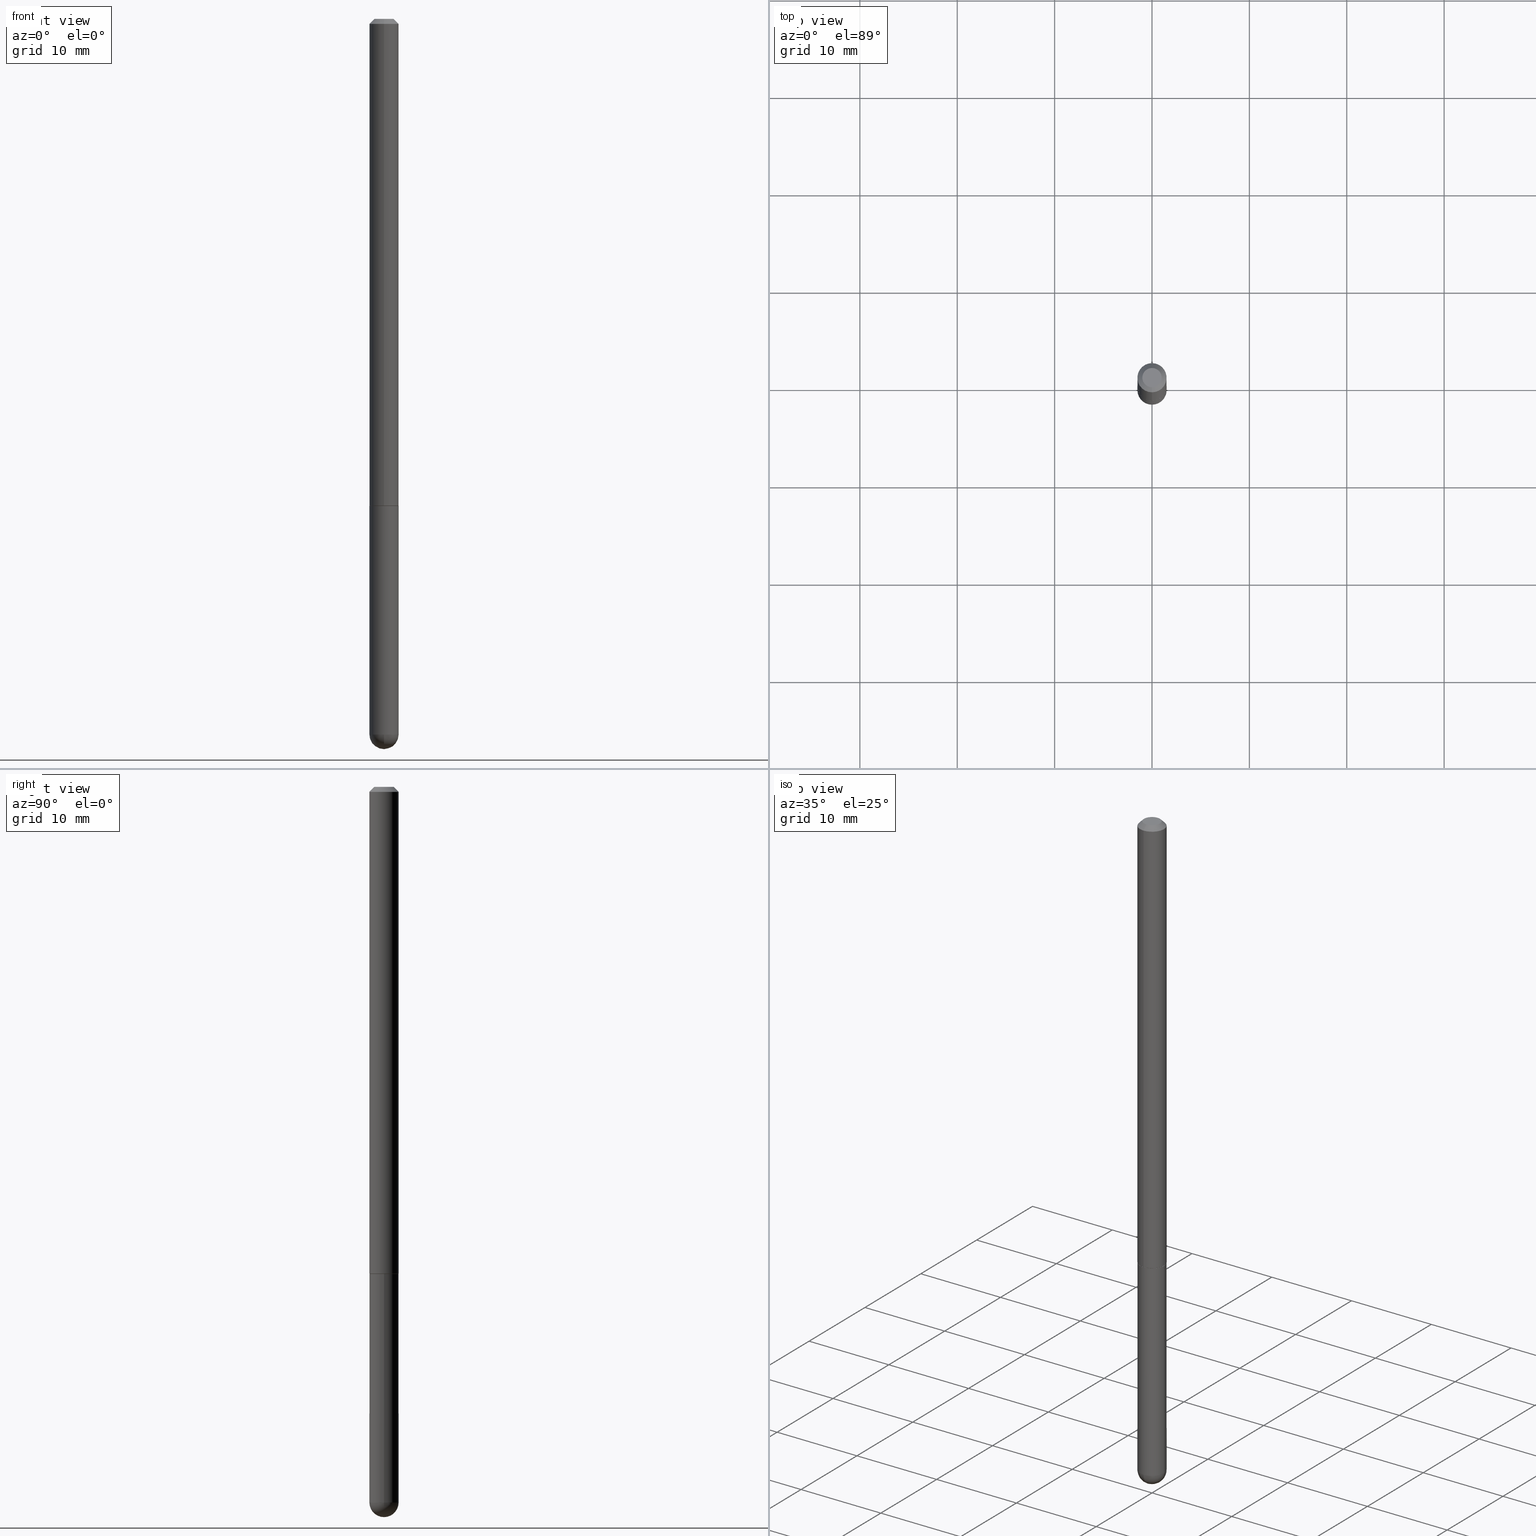
[diagram: canonical four-view strip — front | top / right | iso, engineering-drawing reading convention]
A machine part, canonical four-view strip (front | top / right | iso — engineering-drawing reading convention). The complete STEP part file that produces these views, byte-faithful:
ISO-10303-21;
HEADER;
FILE_DESCRIPTION (( 'STEP AP203' ),
    '1' );
FILE_NAME ('49570.STEP',
    '2024-04-10T12:28:42',
    ( '' ),
    ( '' ),
    'SwSTEP 2.0',
    'SolidWorks 2023',
    '' );
FILE_SCHEMA (( 'CONFIG_CONTROL_DESIGN' ));
ENDSEC;

DATA;
#1 = DIRECTION ( 'NONE',  ( -2.449347094920523449E-29, 3.485927408635585290E-15, 1.000000000000000000 ) ) ;
#2 = CALENDAR_DATE ( 2024, 10, 4 ) ;
#3 = CIRCLE ( 'NONE', #193, 0.05805000000000000437 ) ;
#4 = FACE_OUTER_BOUND ( 'NONE', #210, .T. ) ;
#5 = DATE_AND_TIME ( #88, #20 ) ;
#6 = CONICAL_SURFACE ( 'NONE', #57, 0.05905000000000001914, 0.7853981633974476129 ) ;
#7 = DATE_AND_TIME ( #2, #166 ) ;
#8 = VERTEX_POINT ( 'NONE', #44 ) ;
#9 = EDGE_LOOP ( 'NONE', ( #18, #111, #135, #350 ) ) ;
#10 = FACE_OUTER_BOUND ( 'NONE', #340, .T. ) ;
#11 = VERTEX_POINT ( 'NONE', #263 ) ;
#12 = DIRECTION ( 'NONE',  ( -6.982962677686265922E-15, -1.000000000000000000, 3.485927408635585290E-15 ) ) ;
#13 = ORIENTED_EDGE ( 'NONE', *, *, #170, .T. ) ;
#14 = ORIENTED_EDGE ( 'NONE', *, *, #147, .F. ) ;
#15 = DIRECTION ( 'NONE',  ( 4.937700262164543309E-15, 0.7071067811865444641, -0.7071067811865503483 ) ) ;
#16 = ORIENTED_EDGE ( 'NONE', *, *, #87, .T. ) ;
#17 = CARTESIAN_POINT ( 'NONE',  ( -0.05905000000000001914, -8.068652084428701697E-15, -2.893749999999999822 ) ) ;
#18 = ORIENTED_EDGE ( 'NONE', *, *, #87, .F. ) ;
#19 = EDGE_CURVE ( 'NONE', #71, #363, #3, .T. ) ;
#20 = LOCAL_TIME ( 8, 28, 42.00000000000000000, #31 ) ;
#21 = DIRECTION ( 'NONE',  ( -2.445468806185136597E-29, 3.491481338843145583E-15, 1.000000000000000000 ) ) ;
#22 = AXIS2_PLACEMENT_3D ( 'NONE', #84, #59, #80 ) ;
#23 = CARTESIAN_POINT ( 'NONE',  ( 0.000000000000000000, 0.000000000000000000, 0.000000000000000000 ) ) ;
#24 = AXIS2_PLACEMENT_3D ( 'NONE', #184, #271, #409 ) ;
#25 = ADVANCED_FACE ( 'NONE', ( #259 ), #55, .T. ) ;
#26 = PRODUCT_DEFINITION_FORMATION_WITH_SPECIFIED_SOURCE ( 'ANY', '', #125, .NOT_KNOWN. ) ;
#27 = ADVANCED_FACE ( 'NONE', ( #357 ), #395, .T. ) ;
#28 = EDGE_CURVE ( 'NONE', #331, #332, #380, .T. ) ;
#29 = AXIS2_PLACEMENT_3D ( 'NONE', #134, #330, #231 ) ;
#30 = PERSON_AND_ORGANIZATION_ROLE ( 'design_supplier' ) ;
#31 = COORDINATED_UNIVERSAL_TIME_OFFSET ( 5, 0, .BEHIND. ) ;
#32 = SHAPE_DEFINITION_REPRESENTATION ( #278, #152 ) ;
#33 = VECTOR ( 'NONE', #48, 39.37007874015748854 ) ;
#34 = CARTESIAN_POINT ( 'NONE',  ( 4.898694189841063994E-31, -6.971854817271193900E-17, -0.02000000000000006981 ) ) ;
#35 = PERSON_AND_ORGANIZATION_ROLE ( 'creator' ) ;
#36 = APPLICATION_CONTEXT ( 'configuration controlled 3d designs of mechanical parts and assemblies' ) ;
#37 = ADVANCED_FACE ( 'NONE', ( #179 ), #118, .T. ) ;
#38 = VERTEX_POINT ( 'NONE', #173 ) ;
#39 = EDGE_CURVE ( 'NONE', #394, #162, #334, .T. ) ;
#40 = VECTOR ( 'NONE', #243, 39.37007874015748854 ) ;
#41 = EDGE_LOOP ( 'NONE', ( #202, #69, #195, #157 ) ) ;
#42 = DIRECTION ( 'NONE',  ( 1.000000000000000000, -6.982962677686270655E-15, 0.000000000000000000 ) ) ;
#43 = ORIENTED_EDGE ( 'NONE', *, *, #68, .T. ) ;
#44 = CARTESIAN_POINT ( 'NONE',  ( -0.05905000000000001914, -8.068652084428701697E-15, -1.968499999999999694 ) ) ;
#45 = DIRECTION ( 'NONE',  ( -2.449347094920523169E-29, 3.485927408635585290E-15, 1.000000000000000000 ) ) ;
#46 = AXIS2_PLACEMENT_3D ( 'NONE', #174, #379, #149 ) ;
#47 = ORIENTED_EDGE ( 'NONE', *, *, #190, .T. ) ;
#48 = DIRECTION ( 'NONE',  ( -4.851104656540959542E-15, -0.7071067811865493491, -0.7071067811865454633 ) ) ;
#49 = ORIENTED_EDGE ( 'NONE', *, *, #376, .T. ) ;
#50 = EDGE_CURVE ( 'NONE', #230, #293, #77, .T. ) ;
#51 = DIRECTION ( 'NONE',  ( -2.445468806185136597E-29, 3.491481338843145583E-15, 1.000000000000000000 ) ) ;
#52 = ORIENTED_EDGE ( 'NONE', *, *, #39, .F. ) ;
#53 = DIRECTION ( 'NONE',  ( -2.445468806185136877E-29, 3.491481338843145188E-15, 1.000000000000000000 ) ) ;
#54 = DIRECTION ( 'NONE',  ( 2.438088387897960049E-29, -3.491481338843145188E-15, -1.000000000000000000 ) ) ;
#55 = CONICAL_SURFACE ( 'NONE', #355, 0.05805000000000000437, 0.7853981633976532262 ) ;
#56 = DIRECTION ( 'NONE',  ( 1.000000000000000000, -6.982962677686270655E-15, 0.000000000000000000 ) ) ;
#57 = AXIS2_PLACEMENT_3D ( 'NONE', #388, #95, #224 ) ;
#58 = ADVANCED_FACE ( 'NONE', ( #298 ), #335, .T. ) ;
#59 = DIRECTION ( 'NONE',  ( -2.445468806185136597E-29, 3.491481338843145583E-15, 1.000000000000000000 ) ) ;
#60 = APPROVAL_DATE_TIME ( #318, #397 ) ;
#61 = PERSON_AND_ORGANIZATION_ROLE ( 'classification_officer' ) ;
#62 = PERSON_AND_ORGANIZATION ( #100, #406 ) ;
#63 = AXIS2_PLACEMENT_3D ( 'NONE', #115, #269, #402 ) ;
#64 = EDGE_LOOP ( 'NONE', ( #75, #203, #268, #238 ) ) ;
#65 = EDGE_LOOP ( 'NONE', ( #400, #167 ) ) ;
#66 = VECTOR ( 'NONE', #15, 39.37007874015748854 ) ;
#67 = AXIS2_PLACEMENT_3D ( 'NONE', #310, #182, #274 ) ;
#68 = EDGE_CURVE ( 'NONE', #38, #138, #124, .T. ) ;
#69 = ORIENTED_EDGE ( 'NONE', *, *, #19, .T. ) ;
#70 = DIRECTION ( 'NONE',  ( -7.105427357601001070E-15, -1.000000000000000000, 0.000000000000000000 ) ) ;
#71 = VERTEX_POINT ( 'NONE', #374 ) ;
#72 = ORIENTED_EDGE ( 'NONE', *, *, #337, .T. ) ;
#73 = DIRECTION ( 'NONE',  ( -2.449347094920523449E-29, 3.485927408635585290E-15, 1.000000000000000000 ) ) ;
#74 = LINE ( 'NONE', #82, #40 ) ;
#75 = ORIENTED_EDGE ( 'NONE', *, *, #50, .F. ) ;
#76 = ORIENTED_EDGE ( 'NONE', *, *, #343, .T. ) ;
#77 = LINE ( 'NONE', #270, #323 ) ;
#78 = CIRCLE ( 'NONE', #186, 0.05905000000000021343 ) ;
#79 = CARTESIAN_POINT ( 'NONE',  ( -5.535874225796559963E-45, 7.878693768834629010E-31, 2.260142810007165684E-16 ) ) ;
#80 = DIRECTION ( 'NONE',  ( 1.000000000000000000, -6.982962677686270655E-15, 0.000000000000000000 ) ) ;
#81 = CARTESIAN_POINT ( 'NONE',  ( 7.076575357898237682E-29, -1.010347412427735067E-14, -2.893749999999999822 ) ) ;
#82 = CARTESIAN_POINT ( 'NONE',  ( 4.124700581087863588E-16, 0.05804999999999314181, -1.968499999999999694 ) ) ;
#83 = CARTESIAN_POINT ( 'NONE',  ( 4.123439461173745750E-16, 0.05904999999999994975, -0.02000000000000027450 ) ) ;
#84 = CARTESIAN_POINT ( 'NONE',  ( 7.076575357898237682E-29, -1.010347412427735067E-14, -2.893749999999999822 ) ) ;
#85 = DIRECTION ( 'NONE',  ( -2.445468806185136877E-29, 3.491481338843145188E-15, 1.000000000000000000 ) ) ;
#86 = DIRECTION ( 'NONE',  ( -2.445468806185136597E-29, 3.491481338843145583E-15, 1.000000000000000000 ) ) ;
#87 = EDGE_CURVE ( 'NONE', #394, #361, #226, .T. ) ;
#88 = CALENDAR_DATE ( 2024, 10, 4 ) ;
#89 = DIRECTION ( 'NONE',  ( -2.449347094920523449E-29, 3.485927408635585290E-15, 1.000000000000000000 ) ) ;
#90 = APPROVAL_ROLE ( '' ) ;
#91 = APPLICATION_CONTEXT ( 'configuration controlled 3d designs of mechanical parts and assemblies' ) ;
#92 = APPROVAL ( #349, 'UNSPECIFIED' ) ;
#93 = AXIS2_PLACEMENT_3D ( 'NONE', #237, #21, #56 ) ;
#94 = COORDINATED_UNIVERSAL_TIME_OFFSET ( 5, 0, .BEHIND. ) ;
#95 = DIRECTION ( 'NONE',  ( 2.449347094920523449E-29, -3.485927408635585290E-15, -1.000000000000000000 ) ) ;
#96 = APPROVAL_STATUS ( 'not_yet_approved' ) ;
#97 = AXIS2_PLACEMENT_3D ( 'NONE', #241, #51, #121 ) ;
#98 = EDGE_CURVE ( 'NONE', #138, #11, #168, .T. ) ;
#99 = VECTOR ( 'NONE', #160, 39.37007874015748854 ) ;
#100 = PERSON ( 'UNSPECIFIED', 'UNSPECIFIED', 'UNSPECIFIED', ('UNSPECIFIED'), ('UNSPECIFIED'), ('UNSPECIFIED') ) ;
#101 = EDGE_LOOP ( 'NONE', ( #198, #47, #43, #161, #325 ) ) ;
#102 = CARTESIAN_POINT ( 'NONE',  ( 0.05905000000000001914, -8.900571516012416899E-15, -2.893749999999999822 ) ) ;
#103 = DIRECTION ( 'NONE',  ( -2.449347094920523449E-29, 3.485927408635585290E-15, 1.000000000000000000 ) ) ;
#104 = EDGE_LOOP ( 'NONE', ( #14, #13, #297, #130 ) ) ;
#105 = ORIENTED_EDGE ( 'NONE', *, *, #190, .F. ) ;
#106 = CARTESIAN_POINT ( 'NONE',  ( -4.053609834396395528E-16, -0.05805000000000686694, -1.968499999999999250 ) ) ;
#107 = VERTEX_POINT ( 'NONE', #236 ) ;
#108 = DIRECTION ( 'NONE',  ( -6.982962677686265922E-15, -1.000000000000000000, 3.469747663417776213E-15 ) ) ;
#109 = ORIENTED_EDGE ( 'NONE', *, *, #50, .T. ) ;
#110 = EDGE_CURVE ( 'NONE', #293, #162, #296, .T. ) ;
#111 = ORIENTED_EDGE ( 'NONE', *, *, #39, .T. ) ;
#112 = CARTESIAN_POINT ( 'NONE',  ( 0.05905000000000001914, -4.123439461173741806E-16, 2.879382386107500921E-30 ) ) ;
#113 = DIRECTION ( 'NONE',  ( -6.982962677686265922E-15, -1.000000000000000000, 3.469747663417776213E-15 ) ) ;
#114 = ADVANCED_FACE ( 'NONE', ( #234 ), #366, .F. ) ;
#115 = CARTESIAN_POINT ( 'NONE',  ( 7.076575357898237682E-29, -1.010347412427735067E-14, -2.893749999999999822 ) ) ;
#116 = LINE ( 'NONE', #308, #314 ) ;
#117 = DIRECTION ( 'NONE',  ( -2.449347094920523449E-29, 3.485927408635585290E-15, 1.000000000000000000 ) ) ;
#118 = CYLINDRICAL_SURFACE ( 'NONE', #67, 0.05905000000000001914 ) ;
#119 = EDGE_CURVE ( 'NONE', #11, #8, #122, .T. ) ;
#120 = APPROVAL_PERSON_ORGANIZATION ( #188, #92, #90 ) ;
#121 = DIRECTION ( 'NONE',  ( 1.000000000000000000, -6.982962677686266711E-15, 4.876176775795935793E-29 ) ) ;
#122 = CIRCLE ( 'NONE', #131, 0.05905000000000001914 ) ;
#123 = MECHANICAL_CONTEXT ( 'NONE', #36, 'mechanical' ) ;
#124 = CIRCLE ( 'NONE', #63, 0.05905000000000001914 ) ;
#125 = PRODUCT ( '49570', '49570', '', ( #123 ) ) ;
#126 = CONICAL_SURFACE ( 'NONE', #319, 0.05905000000000001914, 0.7853981633974476129 ) ;
#127 = APPROVAL_DATE_TIME ( #354, #92 ) ;
#128 = EDGE_CURVE ( 'NONE', #363, #107, #396, .T. ) ;
#129 = CC_DESIGN_APPROVAL ( #397, ( #371 ) ) ;
#130 = ORIENTED_EDGE ( 'NONE', *, *, #68, .F. ) ;
#131 = AXIS2_PLACEMENT_3D ( 'NONE', #260, #165, #393 ) ;
#132 = PRODUCT_RELATED_PRODUCT_CATEGORY ( 'detail', '', ( #125 ) ) ;
#133 = ORIENTED_EDGE ( 'NONE', *, *, #172, .T. ) ;
#134 = CARTESIAN_POINT ( 'NONE',  ( 2.726846925636469433E-16, 0.03904999999999975158, -2.311832480686045111E-17 ) ) ;
#135 = ORIENTED_EDGE ( 'NONE', *, *, #364, .T. ) ;
#136 = ORIENTED_EDGE ( 'NONE', *, *, #288, .T. ) ;
#137 = CARTESIAN_POINT ( 'NONE',  ( 6.745455579984352556E-29, -1.057765649241740097E-14, -2.893749999999999822 ) ) ;
#138 = VERTEX_POINT ( 'NONE', #102 ) ;
#139 =( CONVERSION_BASED_UNIT ( 'INCH', #299 ) LENGTH_UNIT ( ) NAMED_UNIT ( #215 ) );
#140 = EDGE_LOOP ( 'NONE', ( #302, #232 ) ) ;
#141 = ADVANCED_FACE ( 'NONE', ( #10 ), #228, .F. ) ;
#142 = DIRECTION ( 'NONE',  ( 6.982962677686266711E-15, 1.000000000000000000, 0.000000000000000000 ) ) ;
#143 =( GEOMETRIC_REPRESENTATION_CONTEXT ( 3 ) GLOBAL_UNCERTAINTY_ASSIGNED_CONTEXT ( ( #356 ) ) GLOBAL_UNIT_ASSIGNED_CONTEXT ( ( #139, #403, #339 ) ) REPRESENTATION_CONTEXT ( 'NONE', 'WORKASPACE' ) );
#144 = CARTESIAN_POINT ( 'NONE',  ( 4.821539756351048818E-29, -6.862048103899147658E-15, -1.968499999999999472 ) ) ;
#145 = AXIS2_PLACEMENT_3D ( 'NONE', #144, #348, #378 ) ;
#146 = CARTESIAN_POINT ( 'NONE',  ( 6.745455579984352556E-29, -1.057765649241740097E-14, -2.893749999999999822 ) ) ;
#147 = EDGE_CURVE ( 'NONE', #249, #38, #373, .T. ) ;
#148 = DIRECTION ( 'NONE',  ( -6.982962677686265922E-15, -1.000000000000000000, 3.485927408635585684E-15 ) ) ;
#149 = DIRECTION ( 'NONE',  ( 6.982962677686265922E-15, 1.000000000000000000, 0.000000000000000000 ) ) ;
#150 = AXIS2_PLACEMENT_3D ( 'NONE', #404, #73, #336 ) ;
#151 = DIRECTION ( 'NONE',  ( -1.000000000000000000, 6.982962677686265922E-15, -4.876176775795935793E-29 ) ) ;
#152 = ADVANCED_BREP_SHAPE_REPRESENTATION ( '49570', ( #311, #163, #206 ), #143 ) ;
#153 = ORIENTED_EDGE ( 'NONE', *, *, #128, .F. ) ;
#154 = DATE_TIME_ROLE ( 'creation_date' ) ;
#155 = DIRECTION ( 'NONE',  ( 2.449347094920523449E-29, -3.485927408635585290E-15, -1.000000000000000000 ) ) ;
#156 = CALENDAR_DATE ( 2024, 10, 4 ) ;
#157 = ORIENTED_EDGE ( 'NONE', *, *, #218, .F. ) ;
#158 = CC_DESIGN_PERSON_AND_ORGANIZATION_ASSIGNMENT ( #352, #253, ( #125 ) ) ;
#159 = EDGE_LOOP ( 'NONE', ( #133, #109, #326, #290 ) ) ;
#160 = DIRECTION ( 'NONE',  ( -4.937700262165559362E-15, -0.7071067811866899033, 0.7071067811864050201 ) ) ;
#161 = ORIENTED_EDGE ( 'NONE', *, *, #98, .T. ) ;
#162 = VERTEX_POINT ( 'NONE', #201 ) ;
#163 = MANIFOLD_SOLID_BREP ( 'Body-Move/Copy2[2]', #266 ) ;
#164 = CARTESIAN_POINT ( 'NONE',  ( 4.821539756351048818E-29, -6.862048103899147658E-15, -1.968499999999999472 ) ) ;
#165 = DIRECTION ( 'NONE',  ( -2.445468806185136597E-29, 3.491481338843145583E-15, 1.000000000000000000 ) ) ;
#166 = LOCAL_TIME ( 8, 28, 42.00000000000000000, #94 ) ;
#167 = ORIENTED_EDGE ( 'NONE', *, *, #19, .F. ) ;
#168 = LINE ( 'NONE', #112, #251 ) ;
#169 = CLOSED_SHELL ( 'NONE', ( #264, #277, #372, #222, #37 ) ) ;
#170 = EDGE_CURVE ( 'NONE', #249, #331, #257, .T. ) ;
#171 =( LENGTH_UNIT ( ) NAMED_UNIT ( * ) SI_UNIT ( $, .METRE. ) );
#172 = EDGE_CURVE ( 'NONE', #107, #230, #78, .T. ) ;
#173 = CARTESIAN_POINT ( 'NONE',  ( -4.195754854662709114E-16, -0.05905000000001047605, -2.893749999999999822 ) ) ;
#174 = CARTESIAN_POINT ( 'NONE',  ( 6.745455579984352556E-29, -1.057765649241740097E-14, -2.893749999999999822 ) ) ;
#175 = CIRCLE ( 'NONE', #282, 0.05905000000000001914 ) ;
#176 = CIRCLE ( 'NONE', #295, 0.03904999999999975158 ) ;
#177 = AXIS2_PLACEMENT_3D ( 'NONE', #137, #199, #142 ) ;
#178 = APPLICATION_PROTOCOL_DEFINITION ( 'international standard', 'config_control_design', 1994, #36 ) ;
#179 = FACE_OUTER_BOUND ( 'NONE', #101, .T. ) ;
#180 = CARTESIAN_POINT ( 'NONE',  ( 4.898694189841063994E-31, -6.971854817271193900E-17, -0.02000000000000006981 ) ) ;
#181 = CC_DESIGN_PERSON_AND_ORGANIZATION_ASSIGNMENT ( #281, #35, ( #316 ) ) ;
#182 = DIRECTION ( 'NONE',  ( -2.445468806185136597E-29, 3.491481338843145583E-15, 1.000000000000000000 ) ) ;
#183 = APPROVAL_DATE_TIME ( #7, #333 ) ;
#184 = CARTESIAN_POINT ( 'NONE',  ( 4.819090409256129249E-29, -6.858562176490512022E-15, -1.967499999999999805 ) ) ;
#185 = ADVANCED_FACE ( 'NONE', ( #246 ), #342, .T. ) ;
#186 = AXIS2_PLACEMENT_3D ( 'NONE', #279, #117, #306 ) ;
#187 = SECURITY_CLASSIFICATION_LEVEL ( 'unclassified' ) ;
#188 = PERSON_AND_ORGANIZATION ( #100, #406 ) ;
#189 = EDGE_CURVE ( 'NONE', #363, #71, #328, .T. ) ;
#190 = EDGE_CURVE ( 'NONE', #332, #38, #197, .T. ) ;
#191 = LOCAL_TIME ( 8, 28, 42.00000000000000000, #313 ) ;
#192 = APPROVAL_ROLE ( '' ) ;
#193 = AXIS2_PLACEMENT_3D ( 'NONE', #164, #103, #398 ) ;
#194 = CC_DESIGN_PERSON_AND_ORGANIZATION_ASSIGNMENT ( #283, #317, ( #26 ) ) ;
#195 = ORIENTED_EDGE ( 'NONE', *, *, #128, .T. ) ;
#196 = LOCAL_TIME ( 8, 28, 42.00000000000000000, #225 ) ;
#197 = CIRCLE ( 'NONE', #22, 0.05905000000000001914 ) ;
#198 = ORIENTED_EDGE ( 'NONE', *, *, #288, .F. ) ;
#199 = DIRECTION ( 'NONE',  ( 1.000000000000000000, -6.982962677686265922E-15, 4.883557194083112340E-29 ) ) ;
#200 = ORIENTED_EDGE ( 'NONE', *, *, #258, .T. ) ;
#201 = CARTESIAN_POINT ( 'NONE',  ( -4.051124067684085231E-16, -0.05905000000000008159, -0.01999999999999986511 ) ) ;
#202 = ORIENTED_EDGE ( 'NONE', *, *, #376, .F. ) ;
#203 = ORIENTED_EDGE ( 'NONE', *, *, #218, .T. ) ;
#204 = CARTESIAN_POINT ( 'NONE',  ( 4.821539756351048818E-29, -6.862048103899147658E-15, -1.968499999999999472 ) ) ;
#205 = DIRECTION ( 'NONE',  ( -1.000000000000000000, 6.982962677686265922E-15, -4.883557194083112340E-29 ) ) ;
#206 = AXIS2_PLACEMENT_3D ( 'NONE', #23, #377, #247 ) ;
#207 = DIRECTION ( 'NONE',  ( -2.449347094920523449E-29, 3.485927408635585290E-15, 1.000000000000000000 ) ) ;
#208 = AXIS2_PLACEMENT_3D ( 'NONE', #291, #262, #70 ) ;
#209 = FACE_OUTER_BOUND ( 'NONE', #368, .T. ) ;
#210 = EDGE_LOOP ( 'NONE', ( #52, #233, #72, #289 ) ) ;
#211 = DIRECTION ( 'NONE',  ( -2.449347094920523449E-29, 3.485927408635585290E-15, 1.000000000000000000 ) ) ;
#212 = PLANE ( 'NONE',  #362 ) ;
#213 = DIRECTION ( 'NONE',  ( -2.449347094920523449E-29, 3.485927408635585290E-15, 1.000000000000000000 ) ) ;
#214 = CARTESIAN_POINT ( 'NONE',  ( 3.425143193405107838E-16, 0.03904999999999975158, 8.988881569349781154E-17 ) ) ;
#215 = DIMENSIONAL_EXPONENTS ( 1.000000000000000000, 0.000000000000000000, 0.000000000000000000, 0.000000000000000000, 0.000000000000000000, 0.000000000000000000, 0.000000000000000000 ) ;
#216 = AXIS2_PLACEMENT_3D ( 'NONE', #81, #86, #307 ) ;
#217 = LINE ( 'NONE', #240, #66 ) ;
#218 = EDGE_CURVE ( 'NONE', #230, #107, #309, .T. ) ;
#219 = CARTESIAN_POINT ( 'NONE',  ( 7.076575357898237682E-29, -1.010347412427735067E-14, -2.893749999999999822 ) ) ;
#220 = PERSON_AND_ORGANIZATION ( #100, #406 ) ;
#221 = DIRECTION ( 'NONE',  ( -6.982962677686265922E-15, -1.000000000000000000, 3.485927408635585684E-15 ) ) ;
#222 = ADVANCED_FACE ( 'NONE', ( #405 ), #212, .F. ) ;
#223 = ADVANCED_FACE ( 'NONE', ( #4 ), #6, .T. ) ;
#224 = DIRECTION ( 'NONE',  ( 6.982962677686265922E-15, 1.000000000000000000, -3.469747663417776213E-15 ) ) ;
#225 = COORDINATED_UNIVERSAL_TIME_OFFSET ( 5, 0, .BEHIND. ) ;
#226 = CIRCLE ( 'NONE', #360, 0.03904999999999975158 ) ;
#227 = DIRECTION ( 'NONE',  ( -2.449347094920523449E-29, 3.485927408635585290E-15, 1.000000000000000000 ) ) ;
#228 = PLANE ( 'NONE',  #29 ) ;
#229 = ORIENTED_EDGE ( 'NONE', *, *, #147, .T. ) ;
#230 = VERTEX_POINT ( 'NONE', #353 ) ;
#231 = DIRECTION ( 'NONE',  ( 6.982962677686265922E-15, 1.000000000000000000, -3.485927408635585290E-15 ) ) ;
#232 = ORIENTED_EDGE ( 'NONE', *, *, #369, .T. ) ;
#233 = ORIENTED_EDGE ( 'NONE', *, *, #343, .F. ) ;
#234 = FACE_OUTER_BOUND ( 'NONE', #65, .T. ) ;
#235 = ORIENTED_EDGE ( 'NONE', *, *, #28, .T. ) ;
#236 = CARTESIAN_POINT ( 'NONE',  ( -4.123439461173273420E-16, -0.05905000000000706906, -1.967499999999999361 ) ) ;
#237 = CARTESIAN_POINT ( 'NONE',  ( 4.813905344975440714E-29, -6.872981015512730918E-15, -1.968499999999999694 ) ) ;
#238 = ORIENTED_EDGE ( 'NONE', *, *, #110, .F. ) ;
#239 = ADVANCED_FACE ( 'NONE', ( #321 ), #126, .T. ) ;
#240 = CARTESIAN_POINT ( 'NONE',  ( 4.123439461173745750E-16, 0.05904999999999994975, -0.02000000000000027450 ) ) ;
#241 = CARTESIAN_POINT ( 'NONE',  ( 0.000000000000000000, 0.000000000000000000, 0.000000000000000000 ) ) ;
#242 = AXIS2_PLACEMENT_3D ( 'NONE', #219, #324, #42 ) ;
#243 = DIRECTION ( 'NONE',  ( 5.024295867789091064E-15, 0.7071067811866947883, 0.7071067811864001351 ) ) ;
#244 = DIRECTION ( 'NONE',  ( -6.982962677686265922E-15, -1.000000000000000000, 3.485927408635585684E-15 ) ) ;
#245 = DIRECTION ( 'NONE',  ( 6.982962677686265922E-15, 1.000000000000000000, 0.000000000000000000 ) ) ;
#246 = FACE_OUTER_BOUND ( 'NONE', #159, .T. ) ;
#247 = DIRECTION ( 'NONE',  ( 1.000000000000000000, 0.000000000000000000, 0.000000000000000000 ) ) ;
#248 = CC_DESIGN_SECURITY_CLASSIFICATION ( #371, ( #26 ) ) ;
#249 = VERTEX_POINT ( 'NONE', #255 ) ;
#250 = APPROVAL_ROLE ( '' ) ;
#251 = VECTOR ( 'NONE', #53, 39.37007874015748143 ) ;
#252 = CIRCLE ( 'NONE', #93, 0.05905000000000001914 ) ;
#253 = PERSON_AND_ORGANIZATION_ROLE ( 'design_owner' ) ;
#254 = CIRCLE ( 'NONE', #242, 0.05905000000000001914 ) ;
#255 = CARTESIAN_POINT ( 'NONE',  ( 6.892385391458386628E-29, -1.078021269580160693E-14, -2.952799999999999869 ) ) ;
#256 = LOCAL_TIME ( 8, 28, 42.00000000000000000, #387 ) ;
#257 = CIRCLE ( 'NONE', #177, 0.05905000000000025506 ) ;
#258 = EDGE_CURVE ( 'NONE', #138, #331, #254, .T. ) ;
#259 = FACE_OUTER_BOUND ( 'NONE', #365, .T. ) ;
#260 = CARTESIAN_POINT ( 'NONE',  ( 4.813905344975440714E-29, -6.872981015512730918E-15, -1.968499999999999694 ) ) ;
#261 = ORIENTED_EDGE ( 'NONE', *, *, #170, .F. ) ;
#262 = DIRECTION ( 'NONE',  ( -1.000000000000000000, 7.105427357601001070E-15, -4.926315508542082329E-29 ) ) ;
#263 = CARTESIAN_POINT ( 'NONE',  ( 0.05905000000000001914, -7.285324961630105839E-15, -1.968499999999999694 ) ) ;
#264 = ADVANCED_FACE ( 'NONE', ( #359 ), #303, .T. ) ;
#265 = DESIGN_CONTEXT ( 'detailed design', #91, 'design' ) ;
#266 = CLOSED_SHELL ( 'NONE', ( #25, #185, #239, #223, #27, #58, #114, #141 ) ) ;
#267 = ORIENTED_EDGE ( 'NONE', *, *, #119, .F. ) ;
#268 = ORIENTED_EDGE ( 'NONE', *, *, #338, .T. ) ;
#269 = DIRECTION ( 'NONE',  ( -2.445468806185136597E-29, 3.491481338843145583E-15, 1.000000000000000000 ) ) ;
#270 = CARTESIAN_POINT ( 'NONE',  ( 4.195754854663399367E-16, 0.05905000000000011628, -2.058440134799317436E-16 ) ) ;
#271 = DIRECTION ( 'NONE',  ( -2.449347094920523449E-29, 3.485927408635585290E-15, 1.000000000000000000 ) ) ;
#272 = DIRECTION ( 'NONE',  ( -2.449347094920523449E-29, 3.485927408635585290E-15, 1.000000000000000000 ) ) ;
#273 = SPHERICAL_SURFACE ( 'NONE', #46, 0.05905000000000025506 ) ;
#274 = DIRECTION ( 'NONE',  ( 1.000000000000000000, -6.982962677686266711E-15, 4.876176775795935793E-29 ) ) ;
#275 = DIRECTION ( 'NONE',  ( -2.449347094920523449E-29, 3.485927408635585290E-15, 1.000000000000000000 ) ) ;
#276 = CARTESIAN_POINT ( 'NONE',  ( -5.535874225796559963E-45, 7.878693768834629010E-31, 2.260142810007165684E-16 ) ) ;
#277 = ADVANCED_FACE ( 'NONE', ( #209 ), #273, .T. ) ;
#278 = PRODUCT_DEFINITION_SHAPE ( 'NONE', 'NONE',  #316 ) ;
#279 = CARTESIAN_POINT ( 'NONE',  ( 4.819090409256129249E-29, -6.858562176490512022E-15, -1.967499999999999805 ) ) ;
#280 = AXIS2_PLACEMENT_3D ( 'NONE', #204, #45, #12 ) ;
#281 = PERSON_AND_ORGANIZATION ( #100, #406 ) ;
#282 = AXIS2_PLACEMENT_3D ( 'NONE', #180, #272, #113 ) ;
#283 = PERSON_AND_ORGANIZATION ( #100, #406 ) ;
#284 = AXIS2_PLACEMENT_3D ( 'NONE', #399, #370, #108 ) ;
#285 = DIRECTION ( 'NONE',  ( 6.982962677686265922E-15, 1.000000000000000000, -3.469747663417776213E-15 ) ) ;
#286 = CC_DESIGN_PERSON_AND_ORGANIZATION_ASSIGNMENT ( #287, #61, ( #371 ) ) ;
#287 = PERSON_AND_ORGANIZATION ( #100, #406 ) ;
#288 = EDGE_CURVE ( 'NONE', #332, #8, #116, .T. ) ;
#289 = ORIENTED_EDGE ( 'NONE', *, *, #110, .T. ) ;
#290 = ORIENTED_EDGE ( 'NONE', *, *, #338, .F. ) ;
#291 = CARTESIAN_POINT ( 'NONE',  ( 6.745455579984352556E-29, -1.057765649241740097E-14, -2.893749999999999822 ) ) ;
#292 = ORIENTED_EDGE ( 'NONE', *, *, #189, .T. ) ;
#293 = VERTEX_POINT ( 'NONE', #83 ) ;
#294 = EDGE_LOOP ( 'NONE', ( #235, #136, #267, #401, #200 ) ) ;
#295 = AXIS2_PLACEMENT_3D ( 'NONE', #276, #275, #148 ) ;
#296 = CIRCLE ( 'NONE', #284, 0.05905000000000001914 ) ;
#297 = ORIENTED_EDGE ( 'NONE', *, *, #258, .F. ) ;
#298 = FACE_OUTER_BOUND ( 'NONE', #41, .T. ) ;
#299 = LENGTH_MEASURE_WITH_UNIT ( LENGTH_MEASURE( 0.02539999999999999897 ), #171 );
#300 = CARTESIAN_POINT ( 'NONE',  ( -4.051124067684085231E-16, -0.05905000000000008159, -0.01999999999999986511 ) ) ;
#301 = CARTESIAN_POINT ( 'NONE',  ( 4.123439461174440441E-16, 0.05904999999998979815, -2.893749999999999822 ) ) ;
#302 = ORIENTED_EDGE ( 'NONE', *, *, #119, .T. ) ;
#303 = CYLINDRICAL_SURFACE ( 'NONE', #97, 0.05905000000000001914 ) ;
#304 = CARTESIAN_POINT ( 'NONE',  ( 0.000000000000000000, 0.000000000000000000, 0.000000000000000000 ) ) ;
#305 = VECTOR ( 'NONE', #213, 39.37007874015748143 ) ;
#306 = DIRECTION ( 'NONE',  ( -6.982962677686265922E-15, -1.000000000000000000, 4.626330217890352770E-15 ) ) ;
#307 = DIRECTION ( 'NONE',  ( 1.000000000000000000, -6.982962677686270655E-15, 0.000000000000000000 ) ) ;
#308 = CARTESIAN_POINT ( 'NONE',  ( -0.05905000000000001914, 4.195754854663392958E-16, -2.904631170795522943E-30 ) ) ;
#309 = CIRCLE ( 'NONE', #24, 0.05905000000000021343 ) ;
#310 = CARTESIAN_POINT ( 'NONE',  ( 0.000000000000000000, 0.000000000000000000, 0.000000000000000000 ) ) ;
#311 = MANIFOLD_SOLID_BREP ( 'Body-Move/Copy2[1]', #169 ) ;
#312 = CARTESIAN_POINT ( 'NONE',  ( -3.365074267906925015E-16, -0.03904999999999975158, 3.621397463079353254E-16 ) ) ;
#313 = COORDINATED_UNIVERSAL_TIME_OFFSET ( 5, 0, .BEHIND. ) ;
#314 = VECTOR ( 'NONE', #85, 39.37007874015748143 ) ;
#315 = APPROVAL_PERSON_ORGANIZATION ( #389, #333, #192 ) ;
#316 = PRODUCT_DEFINITION ( 'UNKNOWN', '', #26, #265 ) ;
#317 = PERSON_AND_ORGANIZATION_ROLE ( 'creator' ) ;
#318 = DATE_AND_TIME ( #347, #256 ) ;
#319 = AXIS2_PLACEMENT_3D ( 'NONE', #34, #155, #285 ) ;
#320 = APPROVAL_STATUS ( 'not_yet_approved' ) ;
#321 = FACE_OUTER_BOUND ( 'NONE', #9, .T. ) ;
#322 = APPLICATION_PROTOCOL_DEFINITION ( 'international standard', 'config_control_design', 1994, #91 ) ;
#323 = VECTOR ( 'NONE', #207, 39.37007874015748143 ) ;
#324 = DIRECTION ( 'NONE',  ( -2.445468806185136597E-29, 3.491481338843145583E-15, 1.000000000000000000 ) ) ;
#325 = ORIENTED_EDGE ( 'NONE', *, *, #369, .F. ) ;
#326 = ORIENTED_EDGE ( 'NONE', *, *, #364, .F. ) ;
#327 = AXIS2_PLACEMENT_3D ( 'NONE', #146, #205, #245 ) ;
#328 = CIRCLE ( 'NONE', #145, 0.05805000000000000437 ) ;
#329 = ORIENTED_EDGE ( 'NONE', *, *, #28, .F. ) ;
#330 = DIRECTION ( 'NONE',  ( 2.449347094920523169E-29, -3.485927408635585290E-15, -1.000000000000000000 ) ) ;
#331 = VERTEX_POINT ( 'NONE', #301 ) ;
#332 = VERTEX_POINT ( 'NONE', #17 ) ;
#333 = APPROVAL ( #96, 'UNSPECIFIED' ) ;
#334 = LINE ( 'NONE', #300, #33 ) ;
#335 = CONICAL_SURFACE ( 'NONE', #150, 0.05805000000000000437, 0.7853981633976532262 ) ;
#336 = DIRECTION ( 'NONE',  ( -6.982962677686265922E-15, -1.000000000000000000, 4.706025828879006204E-15 ) ) ;
#337 = EDGE_CURVE ( 'NONE', #361, #293, #217, .T. ) ;
#338 = EDGE_CURVE ( 'NONE', #107, #162, #346, .T. ) ;
#339 =( NAMED_UNIT ( * ) SI_UNIT ( $, .STERADIAN. ) SOLID_ANGLE_UNIT ( ) );
#340 = EDGE_LOOP ( 'NONE', ( #76, #16 ) ) ;
#341 = DIRECTION ( 'NONE',  ( -6.982962677686265922E-15, -1.000000000000000000, 3.485927408635585684E-15 ) ) ;
#342 = CYLINDRICAL_SURFACE ( 'NONE', #386, 0.05905000000000011628 ) ;
#343 = EDGE_CURVE ( 'NONE', #361, #394, #176, .T. ) ;
#344 = AXIS2_PLACEMENT_3D ( 'NONE', #304, #1, #244 ) ;
#345 = CARTESIAN_POINT ( 'NONE',  ( 4.123439461174222518E-16, 0.05904999999999314270, -1.968500000000000139 ) ) ;
#346 = LINE ( 'NONE', #375, #305 ) ;
#347 = CALENDAR_DATE ( 2024, 10, 4 ) ;
#348 = DIRECTION ( 'NONE',  ( -2.449347094920523449E-29, 3.485927408635585290E-15, 1.000000000000000000 ) ) ;
#349 = APPROVAL_STATUS ( 'not_yet_approved' ) ;
#350 = ORIENTED_EDGE ( 'NONE', *, *, #337, .F. ) ;
#351 = DATE_AND_TIME ( #384, #196 ) ;
#352 = PERSON_AND_ORGANIZATION ( #100, #406 ) ;
#353 = CARTESIAN_POINT ( 'NONE',  ( 4.195754854663646379E-16, 0.05904999999999335780, -1.967500000000000027 ) ) ;
#354 = DATE_AND_TIME ( #156, #191 ) ;
#355 = AXIS2_PLACEMENT_3D ( 'NONE', #392, #227, #358 ) ;
#356 = UNCERTAINTY_MEASURE_WITH_UNIT (LENGTH_MEASURE( 1.000000000000000082E-05 ), #139, 'distance_accuracy_value', 'NONE');
#357 = FACE_OUTER_BOUND ( 'NONE', #64, .T. ) ;
#358 = DIRECTION ( 'NONE',  ( -6.982962677686265922E-15, -1.000000000000000000, 4.706025828879006204E-15 ) ) ;
#359 = FACE_OUTER_BOUND ( 'NONE', #294, .T. ) ;
#360 = AXIS2_PLACEMENT_3D ( 'NONE', #79, #211, #341 ) ;
#361 = VERTEX_POINT ( 'NONE', #214 ) ;
#362 = AXIS2_PLACEMENT_3D ( 'NONE', #345, #54, #151 ) ;
#363 = VERTEX_POINT ( 'NONE', #410 ) ;
#364 = EDGE_CURVE ( 'NONE', #162, #293, #175, .T. ) ;
#365 = EDGE_LOOP ( 'NONE', ( #292, #49, #367, #153 ) ) ;
#366 = PLANE ( 'NONE',  #280 ) ;
#367 = ORIENTED_EDGE ( 'NONE', *, *, #172, .F. ) ;
#368 = EDGE_LOOP ( 'NONE', ( #261, #229, #105, #329 ) ) ;
#369 = EDGE_CURVE ( 'NONE', #8, #11, #252, .T. ) ;
#370 = DIRECTION ( 'NONE',  ( -2.449347094920523449E-29, 3.485927408635585290E-15, 1.000000000000000000 ) ) ;
#371 = SECURITY_CLASSIFICATION ( '', '', #187 ) ;
#372 = ADVANCED_FACE ( 'NONE', ( #412 ), #407, .T. ) ;
#373 = CIRCLE ( 'NONE', #208, 0.05905000000000025506 ) ;
#374 = CARTESIAN_POINT ( 'NONE',  ( 4.160227717875875531E-16, 0.05804999999999314181, -1.968499999999999694 ) ) ;
#375 = CARTESIAN_POINT ( 'NONE',  ( -4.123439461173748216E-16, -0.05905000000000011628, 2.058440134799317436E-16 ) ) ;
#376 = EDGE_CURVE ( 'NONE', #71, #230, #74, .T. ) ;
#377 = DIRECTION ( 'NONE',  ( 0.000000000000000000, 0.000000000000000000, 1.000000000000000000 ) ) ;
#378 = DIRECTION ( 'NONE',  ( -6.982962677686265922E-15, -1.000000000000000000, 4.706025828879006204E-15 ) ) ;
#379 = DIRECTION ( 'NONE',  ( -1.000000000000000000, 6.982962677686265922E-15, -4.883557194083112340E-29 ) ) ;
#380 = CIRCLE ( 'NONE', #216, 0.05905000000000001914 ) ;
#381 = DATE_TIME_ROLE ( 'classification_date' ) ;
#382 = CC_DESIGN_DATE_AND_TIME_ASSIGNMENT ( #351, #154, ( #316 ) ) ;
#383 = CARTESIAN_POINT ( 'NONE',  ( 0.000000000000000000, 0.000000000000000000, 0.000000000000000000 ) ) ;
#384 = CALENDAR_DATE ( 2024, 10, 4 ) ;
#385 = CC_DESIGN_APPROVAL ( #333, ( #316 ) ) ;
#386 = AXIS2_PLACEMENT_3D ( 'NONE', #383, #89, #221 ) ;
#387 = COORDINATED_UNIVERSAL_TIME_OFFSET ( 5, 0, .BEHIND. ) ;
#388 = CARTESIAN_POINT ( 'NONE',  ( 4.898694189841063994E-31, -6.971854817271193900E-17, -0.02000000000000006981 ) ) ;
#389 = PERSON_AND_ORGANIZATION ( #100, #406 ) ;
#390 = APPROVAL_PERSON_ORGANIZATION ( #220, #397, #250 ) ;
#391 = CC_DESIGN_DATE_AND_TIME_ASSIGNMENT ( #5, #381, ( #371 ) ) ;
#392 = CARTESIAN_POINT ( 'NONE',  ( 4.821539756351048818E-29, -6.862048103899147658E-15, -1.968499999999999472 ) ) ;
#393 = DIRECTION ( 'NONE',  ( 1.000000000000000000, -6.982962677686270655E-15, 0.000000000000000000 ) ) ;
#394 = VERTEX_POINT ( 'NONE', #312 ) ;
#395 = CYLINDRICAL_SURFACE ( 'NONE', #344, 0.05905000000000011628 ) ;
#396 = LINE ( 'NONE', #106, #99 ) ;
#397 = APPROVAL ( #320, 'UNSPECIFIED' ) ;
#398 = DIRECTION ( 'NONE',  ( -6.982962677686265922E-15, -1.000000000000000000, 4.706025828879006204E-15 ) ) ;
#399 = CARTESIAN_POINT ( 'NONE',  ( 4.898694189841063994E-31, -6.971854817271193900E-17, -0.02000000000000006981 ) ) ;
#400 = ORIENTED_EDGE ( 'NONE', *, *, #189, .F. ) ;
#401 = ORIENTED_EDGE ( 'NONE', *, *, #98, .F. ) ;
#402 = DIRECTION ( 'NONE',  ( 1.000000000000000000, -6.982962677686270655E-15, 0.000000000000000000 ) ) ;
#403 =( NAMED_UNIT ( * ) PLANE_ANGLE_UNIT ( ) SI_UNIT ( $, .RADIAN. ) );
#404 = CARTESIAN_POINT ( 'NONE',  ( 4.821539756351048818E-29, -6.862048103899147658E-15, -1.968499999999999472 ) ) ;
#405 = FACE_OUTER_BOUND ( 'NONE', #140, .T. ) ;
#406 = ORGANIZATION ( 'UNSPECIFIED', 'UNSPECIFIED', '' ) ;
#407 = SPHERICAL_SURFACE ( 'NONE', #327, 0.05905000000000025506 ) ;
#408 = CC_DESIGN_PERSON_AND_ORGANIZATION_ASSIGNMENT ( #62, #30, ( #26 ) ) ;
#409 = DIRECTION ( 'NONE',  ( -6.982962677686265922E-15, -1.000000000000000000, 4.626330217890352770E-15 ) ) ;
#410 = CARTESIAN_POINT ( 'NONE',  ( -4.053609834396395528E-16, -0.05805000000000686694, -1.968499999999999250 ) ) ;
#411 = CC_DESIGN_APPROVAL ( #92, ( #26 ) ) ;
#412 = FACE_OUTER_BOUND ( 'NONE', #104, .T. ) ;
ENDSEC;
END-ISO-10303-21;
